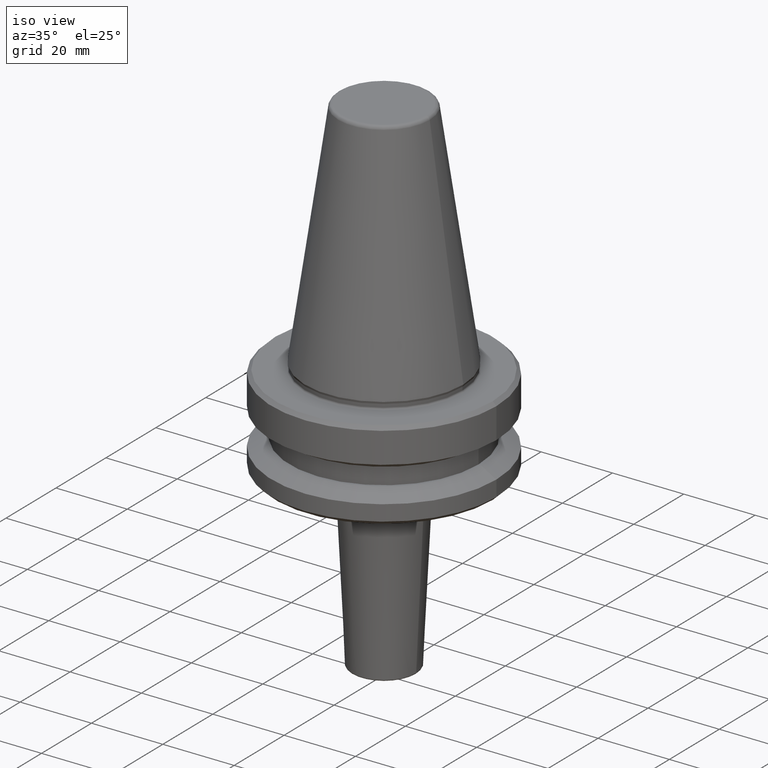
[diagram: clean part render]
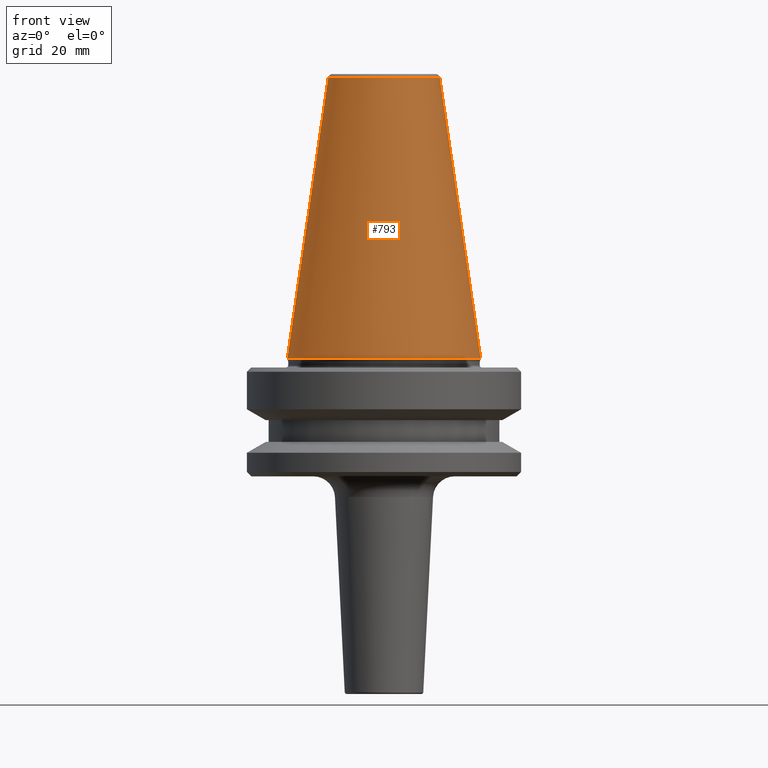
[diagram: tour spotlight — one face highlighted and labeled with its STEP entity id]
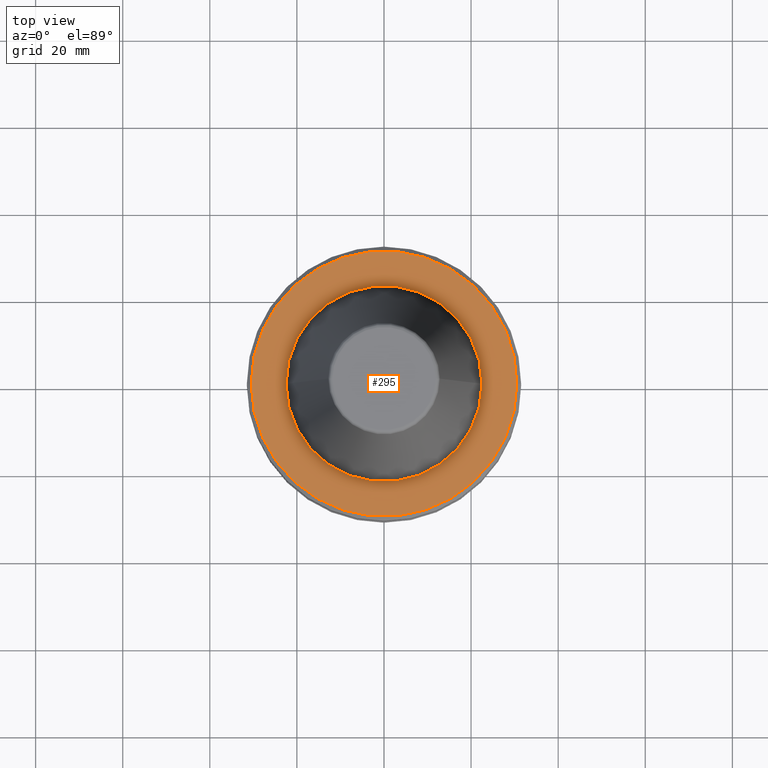
[diagram: tour spotlight — one face highlighted and labeled with its STEP entity id]
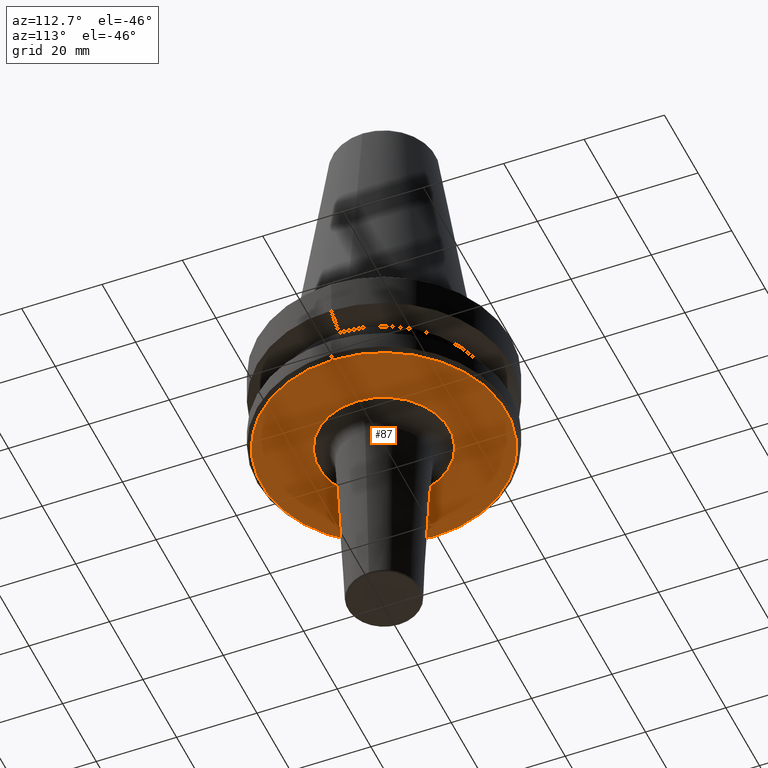
[diagram: tour spotlight — one face highlighted and labeled with its STEP entity id]
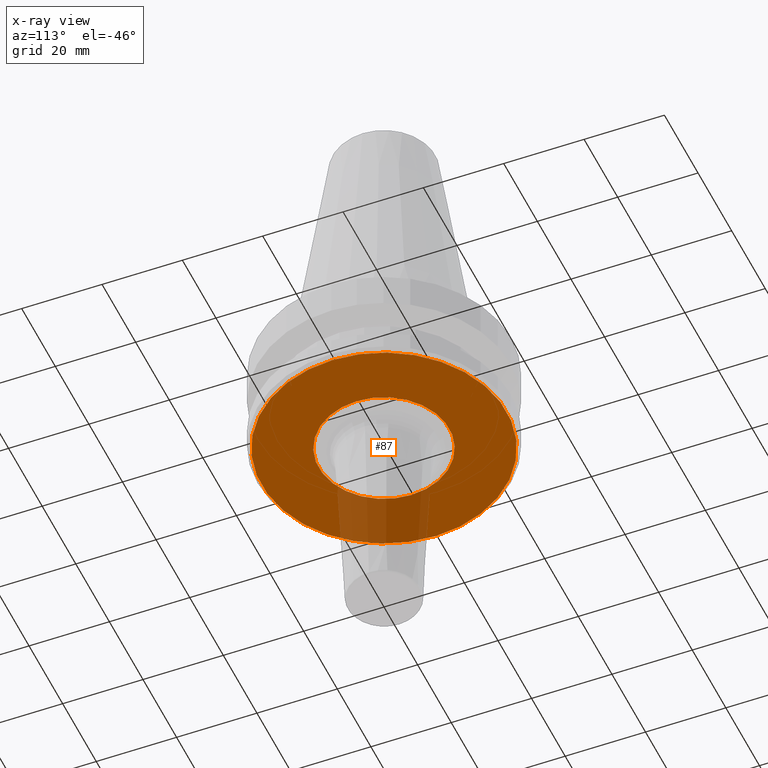
[diagram: x-ray of the same camera — body ghosted, this tour face saturated]
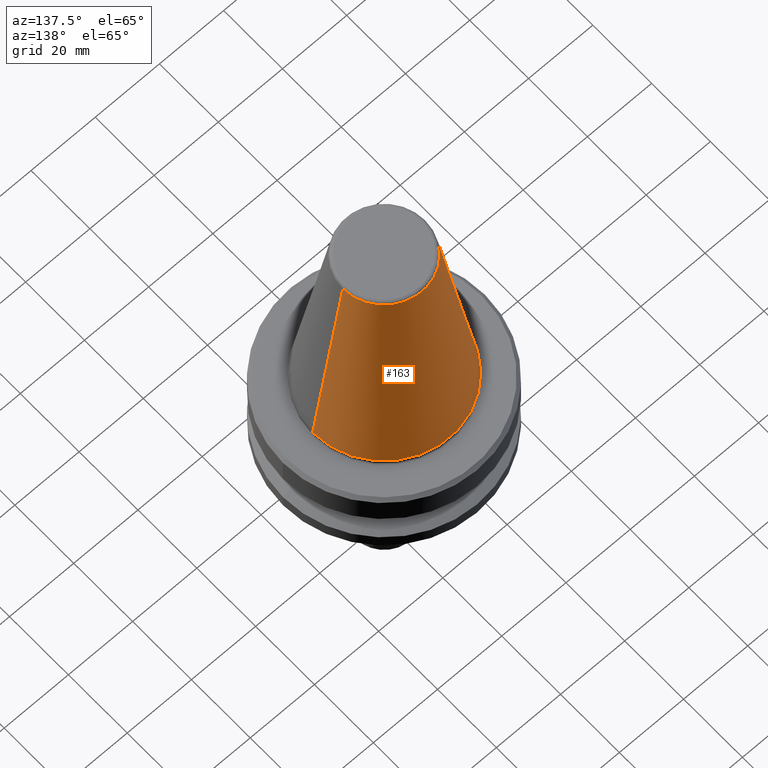
[diagram: tour spotlight — one face highlighted and labeled with its STEP entity id]
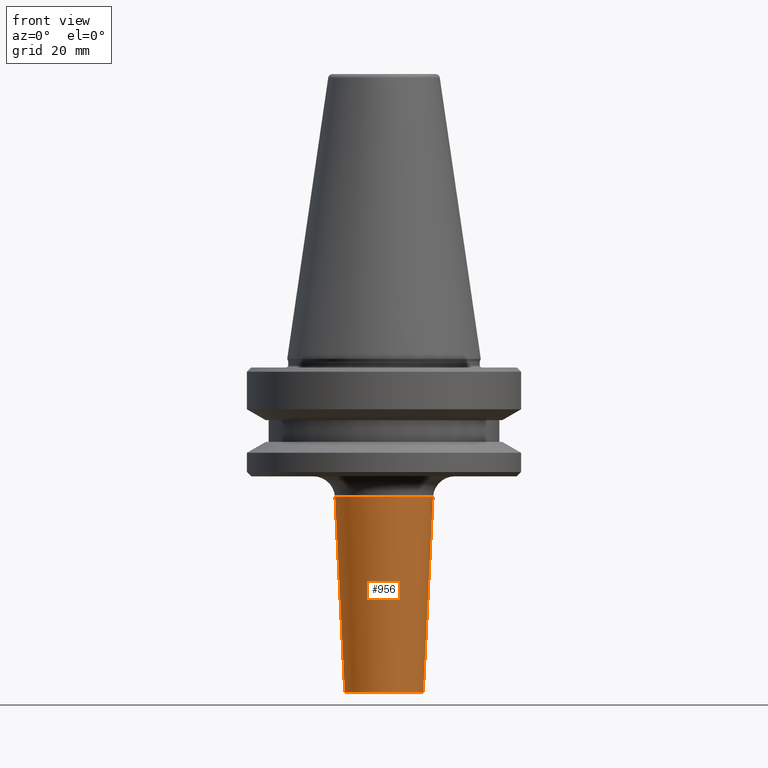
[diagram: tour spotlight — one face highlighted and labeled with its STEP entity id]
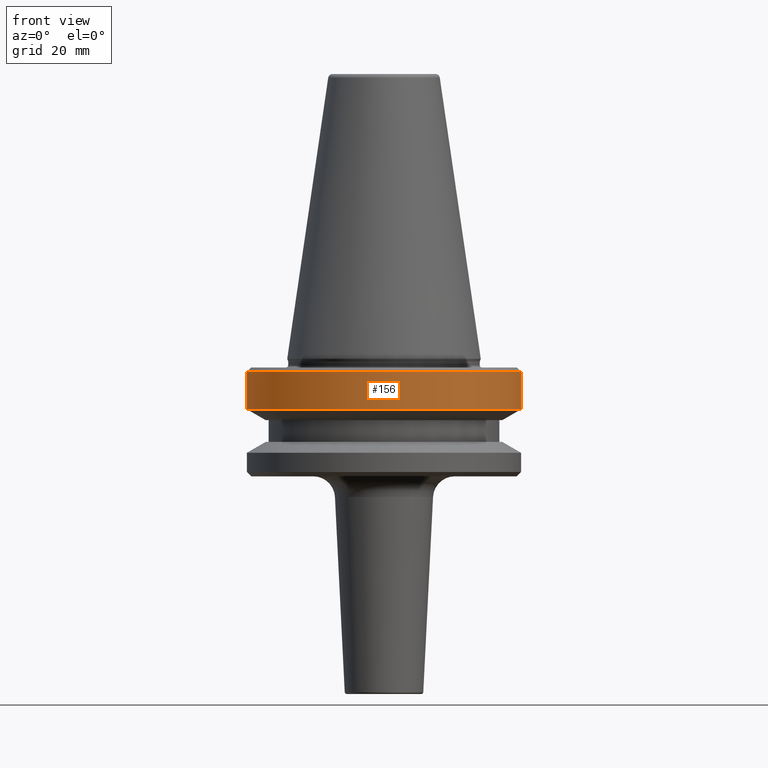
[diagram: tour spotlight — one face highlighted and labeled with its STEP entity id]
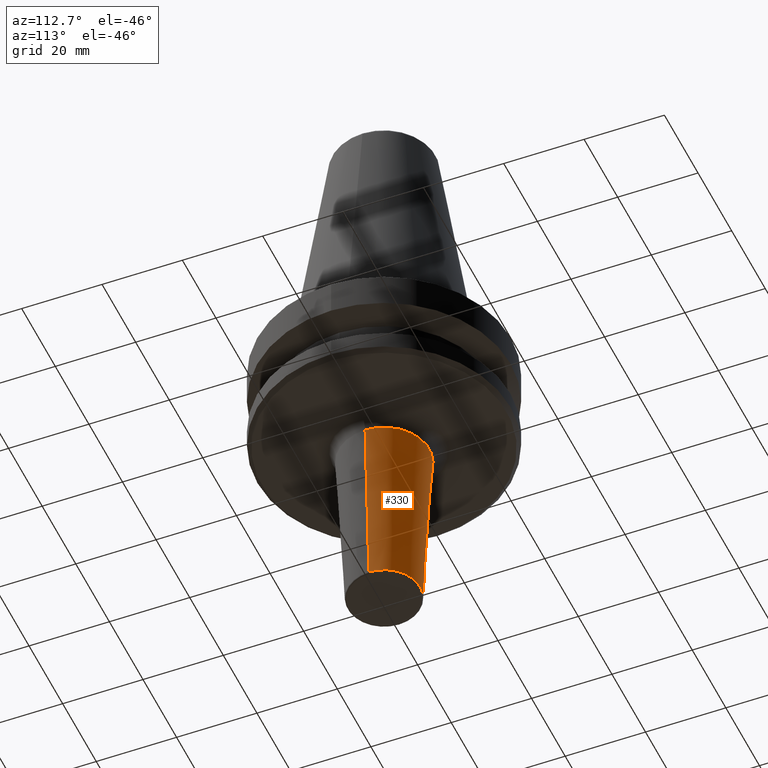
[diagram: tour spotlight — one face highlighted and labeled with its STEP entity id]
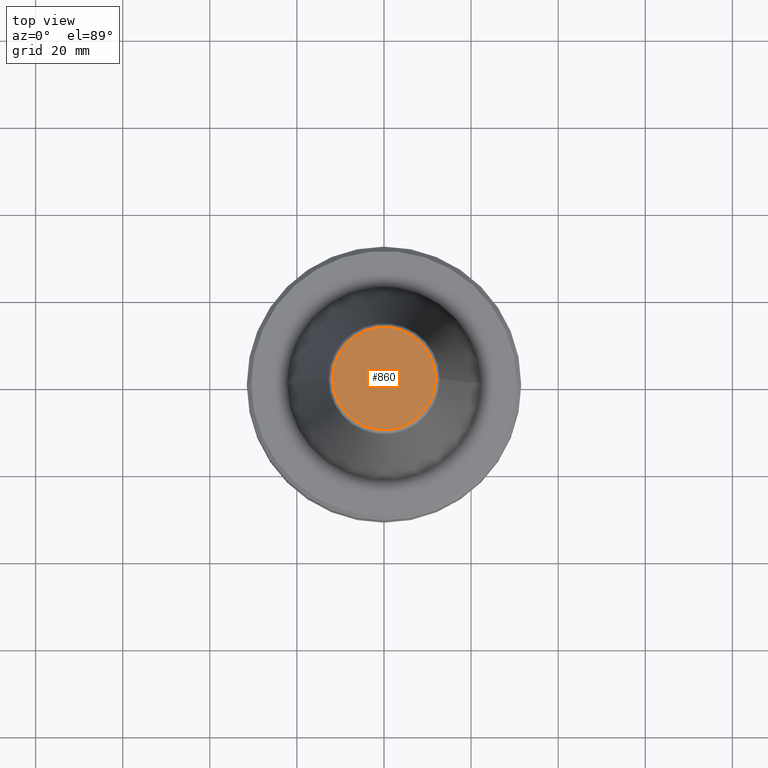
[diagram: tour spotlight — one face highlighted and labeled with its STEP entity id]
A machine part: a face-by-face anatomy tour. The part has 38 B-rep faces; the first image is the clean iso view, then the 8 largest visible faces are spotlighted one at a time (largest first), each with its STEP entity span.

Face 1 — front view, entity #793. In plain terms, the highlighted conical surface has half-angle 8.297 deg.
Definition (entity closure, byte-faithful):
#21 = CARTESIAN_POINT ( 'NONE',  ( -22.22499999999993700, 2.721777511104985000E-015, -65.40000000000057400 ) ) ;
#32 = CARTESIAN_POINT ( 'NONE',  ( 0.0000000000000000000, 0.0000000000000000000, -0.8556918111122247000 ) ) ;
#39 = CONICAL_SURFACE ( 'NONE', #927, 12.81220206925736900, 0.1448138077623198300 ) ;
#59 = CARTESIAN_POINT ( 'NONE',  ( 12.81220206925736900, 1.569042225414513200E-015, -0.8556918111122247000 ) ) ;
#63 = DIRECTION ( 'NONE',  ( 0.1443081888881795900, 1.767265616126607700E-017, -0.9895327920891826600 ) ) ;
#111 = VECTOR ( 'NONE', #63, 1000.000000000000000 ) ;
#147 = CARTESIAN_POINT ( 'NONE',  ( -12.81220206925736900, 0.0000000000000000000, -0.8556918111122247000 ) ) ;
#155 = AXIS2_PLACEMENT_3D ( 'NONE', #427, #942, #932 ) ;
#165 = ORIENTED_EDGE ( 'NONE', *, *, #823, .T. ) ;
#222 = VERTEX_POINT ( 'NONE', #905 ) ;
#290 = ORIENTED_EDGE ( 'NONE', *, *, #410, .F. ) ;
#291 = VERTEX_POINT ( 'NONE', #21 ) ;
#298 = AXIS2_PLACEMENT_3D ( 'NONE', #32, #926, #756 ) ;
#317 = ORIENTED_EDGE ( 'NONE', *, *, #1020, .F. ) ;
#336 = CIRCLE ( 'NONE', #298, 12.81220206925736900 ) ;
#386 = EDGE_CURVE ( 'NONE', #708, #291, #761, .T. ) ;
#410 = EDGE_CURVE ( 'NONE', #999, #222, #535, .T. ) ;
#427 = CARTESIAN_POINT ( 'NONE',  ( 0.0000000000000000000, 0.0000000000000000000, -65.40000000000057400 ) ) ;
#497 = CARTESIAN_POINT ( 'NONE',  ( 0.0000000000000000000, 0.0000000000000000000, -0.8556918111122247000 ) ) ;
#535 = LINE ( 'NONE', #59, #111 ) ;
#574 = CARTESIAN_POINT ( 'NONE',  ( 12.81220206925736900, 2.145409868259749100E-015, -0.8556918111122247000 ) ) ;
#627 = FACE_OUTER_BOUND ( 'NONE', #641, .T. ) ;
#641 = EDGE_LOOP ( 'NONE', ( #290, #317, #1016, #165 ) ) ;
#658 = CIRCLE ( 'NONE', #155, 22.22499999999993700 ) ;
#668 = DIRECTION ( 'NONE',  ( -1.000000000000000000, 0.0000000000000000000, 0.0000000000000000000 ) ) ;
#707 = CARTESIAN_POINT ( 'NONE',  ( -12.81220206925736900, 0.0000000000000000000, -0.8556918111122247000 ) ) ;
#708 = VERTEX_POINT ( 'NONE', #147 ) ;
#736 = VECTOR ( 'NONE', #818, 1000.000000000000000 ) ;
#756 = DIRECTION ( 'NONE',  ( 1.000000000000000000, 0.0000000000000000000, 0.0000000000000000000 ) ) ;
#761 = LINE ( 'NONE', #707, #736 ) ;
#793 = ADVANCED_FACE ( 'NONE', ( #627 ), #39, .T. ) ;
#818 = DIRECTION ( 'NONE',  ( -0.1443081888881795900, 0.0000000000000000000, -0.9895327920891826600 ) ) ;
#823 = EDGE_CURVE ( 'NONE', #291, #222, #658, .T. ) ;
#905 = CARTESIAN_POINT ( 'NONE',  ( 22.22499999999993700, 0.0000000000000000000, -65.40000000000057400 ) ) ;
#926 = DIRECTION ( 'NONE',  ( -0.0000000000000000000, -0.0000000000000000000, 1.000000000000000000 ) ) ;
#927 = AXIS2_PLACEMENT_3D ( 'NONE', #497, #1026, #668 ) ;
#932 = DIRECTION ( 'NONE',  ( 1.000000000000000000, 0.0000000000000000000, 0.0000000000000000000 ) ) ;
#942 = DIRECTION ( 'NONE',  ( -0.0000000000000000000, -0.0000000000000000000, 1.000000000000000000 ) ) ;
#999 = VERTEX_POINT ( 'NONE', #574 ) ;
#1016 = ORIENTED_EDGE ( 'NONE', *, *, #386, .T. ) ;
#1020 = EDGE_CURVE ( 'NONE', #708, #999, #336, .T. ) ;
#1026 = DIRECTION ( 'NONE',  ( 0.0000000000000000000, 0.0000000000000000000, -1.000000000000000000 ) ) ;

Face 2 — top view, entity #295. In plain terms, the highlighted planar face has unit normal (0, 0, -1).
Definition (entity closure, byte-faithful):
#3 = CARTESIAN_POINT ( 'NONE',  ( 0.0000000000000000000, 0.0000000000000000000, -67.40000000000034700 ) ) ;
#46 = CARTESIAN_POINT ( 'NONE',  ( -22.49999999999996400, 2.755455298081540400E-015, -67.40000000000034700 ) ) ;
#70 = EDGE_CURVE ( 'NONE', #308, #687, #914, .T. ) ;
#102 = DIRECTION ( 'NONE',  ( -0.0000000000000000000, -0.0000000000000000000, 1.000000000000000000 ) ) ;
#151 = CIRCLE ( 'NONE', #566, 22.49999999999996400 ) ;
#157 = CARTESIAN_POINT ( 'NONE',  ( 30.49999999999997200, 3.796405077356798300E-015, -67.40000000000034700 ) ) ;
#228 = CIRCLE ( 'NONE', #710, 30.49999999999997200 ) ;
#259 = EDGE_CURVE ( 'NONE', #624, #344, #630, .T. ) ;
#270 = EDGE_CURVE ( 'NONE', #687, #308, #151, .T. ) ;
#271 = PLANE ( 'NONE',  #321 ) ;
#295 = ADVANCED_FACE ( 'NONE', ( #941, #343 ), #271, .F. ) ;
#308 = VERTEX_POINT ( 'NONE', #631 ) ;
#314 = CARTESIAN_POINT ( 'NONE',  ( 0.0000000000000000000, 0.0000000000000000000, -67.40000000000034700 ) ) ;
#321 = AXIS2_PLACEMENT_3D ( 'NONE', #748, #882, #1025 ) ;
#343 = FACE_OUTER_BOUND ( 'NONE', #770, .T. ) ;
#344 = VERTEX_POINT ( 'NONE', #157 ) ;
#356 = CARTESIAN_POINT ( 'NONE',  ( 0.0000000000000000000, 0.0000000000000000000, -67.40000000000034700 ) ) ;
#358 = CARTESIAN_POINT ( 'NONE',  ( -30.49999999999997200, 0.0000000000000000000, -67.40000000000034700 ) ) ;
#383 = ORIENTED_EDGE ( 'NONE', *, *, #735, .T. ) ;
#384 = ORIENTED_EDGE ( 'NONE', *, *, #259, .T. ) ;
#418 = AXIS2_PLACEMENT_3D ( 'NONE', #314, #102, #920 ) ;
#474 = DIRECTION ( 'NONE',  ( 1.000000000000000000, 0.0000000000000000000, 0.0000000000000000000 ) ) ;
#566 = AXIS2_PLACEMENT_3D ( 'NONE', #3, #583, #581 ) ;
#581 = DIRECTION ( 'NONE',  ( 1.000000000000000000, 0.0000000000000000000, 0.0000000000000000000 ) ) ;
#583 = DIRECTION ( 'NONE',  ( -0.0000000000000000000, -0.0000000000000000000, 1.000000000000000000 ) ) ;
#624 = VERTEX_POINT ( 'NONE', #358 ) ;
#630 = CIRCLE ( 'NONE', #418, 30.49999999999997200 ) ;
#631 = CARTESIAN_POINT ( 'NONE',  ( 22.49999999999996400, 0.0000000000000000000, -67.40000000000034700 ) ) ;
#642 = DIRECTION ( 'NONE',  ( 1.000000000000000000, 0.0000000000000000000, 0.0000000000000000000 ) ) ;
#687 = VERTEX_POINT ( 'NONE', #46 ) ;
#710 = AXIS2_PLACEMENT_3D ( 'NONE', #356, #910, #474 ) ;
#715 = ORIENTED_EDGE ( 'NONE', *, *, #270, .F. ) ;
#735 = EDGE_CURVE ( 'NONE', #344, #624, #228, .T. ) ;
#748 = CARTESIAN_POINT ( 'NONE',  ( 0.0000000000000000000, 0.0000000000000000000, -67.40000000000034700 ) ) ;
#770 = EDGE_LOOP ( 'NONE', ( #384, #383 ) ) ;
#771 = AXIS2_PLACEMENT_3D ( 'NONE', #970, #993, #642 ) ;
#865 = ORIENTED_EDGE ( 'NONE', *, *, #70, .F. ) ;
#882 = DIRECTION ( 'NONE',  ( 0.0000000000000000000, 0.0000000000000000000, -1.000000000000000000 ) ) ;
#904 = EDGE_LOOP ( 'NONE', ( #865, #715 ) ) ;
#910 = DIRECTION ( 'NONE',  ( -0.0000000000000000000, -0.0000000000000000000, 1.000000000000000000 ) ) ;
#914 = CIRCLE ( 'NONE', #771, 22.49999999999996400 ) ;
#920 = DIRECTION ( 'NONE',  ( 1.000000000000000000, 0.0000000000000000000, 0.0000000000000000000 ) ) ;
#941 = FACE_BOUND ( 'NONE', #904, .T. ) ;
#970 = CARTESIAN_POINT ( 'NONE',  ( 0.0000000000000000000, 0.0000000000000000000, -67.40000000000034700 ) ) ;
#993 = DIRECTION ( 'NONE',  ( -0.0000000000000000000, -0.0000000000000000000, 1.000000000000000000 ) ) ;
#1025 = DIRECTION ( 'NONE',  ( -1.000000000000000000, 0.0000000000000000000, -0.0000000000000000000 ) ) ;

Face 3 — auxiliary view, entity #87. An x-ray twin of the same camera follows (body ghosted, this face saturated) — the face is partly hidden behind the body. In plain terms, the highlighted planar face has unit normal (0, -0, 1).
Definition (entity closure, byte-faithful):
#14 = CARTESIAN_POINT ( 'NONE',  ( 0.0000000000000000000, 0.0000000000000000000, -92.40000000000806300 ) ) ;
#22 = CARTESIAN_POINT ( 'NONE',  ( 0.0000000000000000000, 0.0000000000000000000, -92.40000000000806300 ) ) ;
#29 = DIRECTION ( 'NONE',  ( 0.0000000000000000000, -0.0000000000000000000, 1.000000000000000000 ) ) ;
#31 = DIRECTION ( 'NONE',  ( -0.0000000000000000000, -0.0000000000000000000, 1.000000000000000000 ) ) ;
#49 = EDGE_CURVE ( 'NONE', #471, #659, #140, .T. ) ;
#75 = AXIS2_PLACEMENT_3D ( 'NONE', #14, #208, #462 ) ;
#82 = ORIENTED_EDGE ( 'NONE', *, *, #116, .T. ) ;
#87 = ADVANCED_FACE ( 'NONE', ( #482, #511 ), #239, .F. ) ;
#98 = DIRECTION ( 'NONE',  ( 1.000000000000000000, 0.0000000000000000000, 0.0000000000000000000 ) ) ;
#116 = EDGE_CURVE ( 'NONE', #659, #471, #483, .T. ) ;
#140 = CIRCLE ( 'NONE', #177, 16.25624609862519400 ) ;
#177 = AXIS2_PLACEMENT_3D ( 'NONE', #22, #794, #644 ) ;
#202 = DIRECTION ( 'NONE',  ( 1.000000000000000000, 0.0000000000000000000, 0.0000000000000000000 ) ) ;
#208 = DIRECTION ( 'NONE',  ( -0.0000000000000000000, -0.0000000000000000000, 1.000000000000000000 ) ) ;
#239 = PLANE ( 'NONE',  #998 ) ;
#265 = CARTESIAN_POINT ( 'NONE',  ( 0.0000000000000000000, 1.800519164149672700E-013, -92.40000000000804900 ) ) ;
#277 = CARTESIAN_POINT ( 'NONE',  ( 30.49999999999241900, 0.0000000000000000000, -92.40000000000803500 ) ) ;
#324 = CIRCLE ( 'NONE', #701, 30.49999999999241900 ) ;
#391 = EDGE_LOOP ( 'NONE', ( #894, #996 ) ) ;
#436 = EDGE_CURVE ( 'NONE', #797, #625, #324, .T. ) ;
#462 = DIRECTION ( 'NONE',  ( 1.000000000000000000, 0.0000000000000000000, 0.0000000000000000000 ) ) ;
#471 = VERTEX_POINT ( 'NONE', #709 ) ;
#482 = FACE_OUTER_BOUND ( 'NONE', #391, .T. ) ;
#483 = CIRCLE ( 'NONE', #75, 16.25624609862519400 ) ;
#484 = EDGE_CURVE ( 'NONE', #625, #797, #880, .T. ) ;
#511 = FACE_BOUND ( 'NONE', #944, .T. ) ;
#616 = AXIS2_PLACEMENT_3D ( 'NONE', #662, #31, #98 ) ;
#625 = VERTEX_POINT ( 'NONE', #746 ) ;
#644 = DIRECTION ( 'NONE',  ( 1.000000000000000000, 0.0000000000000000000, 0.0000000000000000000 ) ) ;
#659 = VERTEX_POINT ( 'NONE', #728 ) ;
#662 = CARTESIAN_POINT ( 'NONE',  ( 0.0000000000000000000, 0.0000000000000000000, -92.40000000000803500 ) ) ;
#701 = AXIS2_PLACEMENT_3D ( 'NONE', #754, #745, #202 ) ;
#709 = CARTESIAN_POINT ( 'NONE',  ( -16.25624609862519400, 1.990815975083299200E-015, -92.40000000000806300 ) ) ;
#728 = CARTESIAN_POINT ( 'NONE',  ( 16.25624609862519400, 0.0000000000000000000, -92.40000000000806300 ) ) ;
#745 = DIRECTION ( 'NONE',  ( -0.0000000000000000000, -0.0000000000000000000, 1.000000000000000000 ) ) ;
#746 = CARTESIAN_POINT ( 'NONE',  ( -30.49999999999241900, 3.796405077356336000E-015, -92.40000000000803500 ) ) ;
#754 = CARTESIAN_POINT ( 'NONE',  ( 0.0000000000000000000, 0.0000000000000000000, -92.40000000000803500 ) ) ;
#794 = DIRECTION ( 'NONE',  ( -0.0000000000000000000, -0.0000000000000000000, 1.000000000000000000 ) ) ;
#797 = VERTEX_POINT ( 'NONE', #277 ) ;
#875 = DIRECTION ( 'NONE',  ( 1.000000000000000000, 0.0000000000000000000, 0.0000000000000000000 ) ) ;
#880 = CIRCLE ( 'NONE', #616, 30.49999999999241900 ) ;
#894 = ORIENTED_EDGE ( 'NONE', *, *, #436, .F. ) ;
#944 = EDGE_LOOP ( 'NONE', ( #82, #951 ) ) ;
#951 = ORIENTED_EDGE ( 'NONE', *, *, #49, .T. ) ;
#996 = ORIENTED_EDGE ( 'NONE', *, *, #484, .F. ) ;
#998 = AXIS2_PLACEMENT_3D ( 'NONE', #265, #29, #875 ) ;

Face 4 — auxiliary view, entity #163. In plain terms, the highlighted conical surface has half-angle 8.297 deg.
Definition (entity closure, byte-faithful):
#15 = AXIS2_PLACEMENT_3D ( 'NONE', #615, #980, #86 ) ;
#21 = CARTESIAN_POINT ( 'NONE',  ( -22.22499999999993700, 2.721777511104985000E-015, -65.40000000000057400 ) ) ;
#25 = FACE_OUTER_BOUND ( 'NONE', #479, .T. ) ;
#59 = CARTESIAN_POINT ( 'NONE',  ( 12.81220206925736900, 1.569042225414513200E-015, -0.8556918111122247000 ) ) ;
#63 = DIRECTION ( 'NONE',  ( 0.1443081888881795900, 1.767265616126607700E-017, -0.9895327920891826600 ) ) ;
#86 = DIRECTION ( 'NONE',  ( 1.000000000000000000, 0.0000000000000000000, 0.0000000000000000000 ) ) ;
#111 = VECTOR ( 'NONE', #63, 1000.000000000000000 ) ;
#147 = CARTESIAN_POINT ( 'NONE',  ( -12.81220206925736900, 0.0000000000000000000, -0.8556918111122247000 ) ) ;
#149 = CIRCLE ( 'NONE', #200, 12.81220206925736900 ) ;
#163 = ADVANCED_FACE ( 'NONE', ( #25 ), #393, .T. ) ;
#200 = AXIS2_PLACEMENT_3D ( 'NONE', #466, #1029, #319 ) ;
#222 = VERTEX_POINT ( 'NONE', #905 ) ;
#291 = VERTEX_POINT ( 'NONE', #21 ) ;
#301 = CIRCLE ( 'NONE', #15, 22.22499999999993700 ) ;
#319 = DIRECTION ( 'NONE',  ( 1.000000000000000000, 0.0000000000000000000, 0.0000000000000000000 ) ) ;
#337 = ORIENTED_EDGE ( 'NONE', *, *, #959, .T. ) ;
#386 = EDGE_CURVE ( 'NONE', #708, #291, #761, .T. ) ;
#393 = CONICAL_SURFACE ( 'NONE', #406, 12.81220206925736900, 0.1448138077623198300 ) ;
#406 = AXIS2_PLACEMENT_3D ( 'NONE', #703, #675, #633 ) ;
#410 = EDGE_CURVE ( 'NONE', #999, #222, #535, .T. ) ;
#466 = CARTESIAN_POINT ( 'NONE',  ( 0.0000000000000000000, 0.0000000000000000000, -0.8556918111122247000 ) ) ;
#479 = EDGE_LOOP ( 'NONE', ( #874, #1019, #337, #821 ) ) ;
#535 = LINE ( 'NONE', #59, #111 ) ;
#574 = CARTESIAN_POINT ( 'NONE',  ( 12.81220206925736900, 2.145409868259749100E-015, -0.8556918111122247000 ) ) ;
#615 = CARTESIAN_POINT ( 'NONE',  ( 0.0000000000000000000, 0.0000000000000000000, -65.40000000000057400 ) ) ;
#633 = DIRECTION ( 'NONE',  ( -1.000000000000000000, 0.0000000000000000000, 0.0000000000000000000 ) ) ;
#675 = DIRECTION ( 'NONE',  ( 0.0000000000000000000, 0.0000000000000000000, -1.000000000000000000 ) ) ;
#703 = CARTESIAN_POINT ( 'NONE',  ( 0.0000000000000000000, 0.0000000000000000000, -0.8556918111122247000 ) ) ;
#707 = CARTESIAN_POINT ( 'NONE',  ( -12.81220206925736900, 0.0000000000000000000, -0.8556918111122247000 ) ) ;
#708 = VERTEX_POINT ( 'NONE', #147 ) ;
#736 = VECTOR ( 'NONE', #818, 1000.000000000000000 ) ;
#761 = LINE ( 'NONE', #707, #736 ) ;
#818 = DIRECTION ( 'NONE',  ( -0.1443081888881795900, 0.0000000000000000000, -0.9895327920891826600 ) ) ;
#821 = ORIENTED_EDGE ( 'NONE', *, *, #386, .F. ) ;
#874 = ORIENTED_EDGE ( 'NONE', *, *, #995, .F. ) ;
#905 = CARTESIAN_POINT ( 'NONE',  ( 22.22499999999993700, 0.0000000000000000000, -65.40000000000057400 ) ) ;
#959 = EDGE_CURVE ( 'NONE', #222, #291, #301, .T. ) ;
#980 = DIRECTION ( 'NONE',  ( -0.0000000000000000000, -0.0000000000000000000, 1.000000000000000000 ) ) ;
#995 = EDGE_CURVE ( 'NONE', #999, #708, #149, .T. ) ;
#999 = VERTEX_POINT ( 'NONE', #574 ) ;
#1019 = ORIENTED_EDGE ( 'NONE', *, *, #410, .T. ) ;
#1029 = DIRECTION ( 'NONE',  ( -0.0000000000000000000, -0.0000000000000000000, 1.000000000000000000 ) ) ;

Face 5 — front view, entity #956. In plain terms, the highlighted conical surface has half-angle 2.862 deg.
Definition (entity closure, byte-faithful):
#53 = ORIENTED_EDGE ( 'NONE', *, *, #840, .F. ) ;
#65 = ORIENTED_EDGE ( 'NONE', *, *, #878, .T. ) ;
#89 = CARTESIAN_POINT ( 'NONE',  ( 9.023751559576391300, 0.0000000000000000000, -141.9249688084802900 ) ) ;
#129 = CONICAL_SURFACE ( 'NONE', #1014, 11.26248440423597500, 0.04995839572194268200 ) ;
#207 = CARTESIAN_POINT ( 'NONE',  ( 0.0000000000000000000, 0.0000000000000000000, -97.15031191528858300 ) ) ;
#253 = CIRCLE ( 'NONE', #614, 11.26248440423597500 ) ;
#266 = EDGE_CURVE ( 'NONE', #899, #340, #368, .T. ) ;
#267 = CARTESIAN_POINT ( 'NONE',  ( 11.26248440423597500, 0.0000000000000000000, -97.15031191528858300 ) ) ;
#305 = DIRECTION ( 'NONE',  ( 1.000000000000000000, 0.0000000000000000000, 0.0000000000000000000 ) ) ;
#328 = FACE_OUTER_BOUND ( 'NONE', #807, .T. ) ;
#333 = DIRECTION ( 'NONE',  ( 1.000000000000000000, 0.0000000000000000000, 0.0000000000000000000 ) ) ;
#340 = VERTEX_POINT ( 'NONE', #559 ) ;
#349 = DIRECTION ( 'NONE',  ( -0.04993761694389215600, 6.115594274738417000E-018, 0.9987523388778446500 ) ) ;
#368 = LINE ( 'NONE', #267, #976 ) ;
#378 = CIRCLE ( 'NONE', #639, 9.023751559576391300 ) ;
#405 = DIRECTION ( 'NONE',  ( -0.0000000000000000000, -0.0000000000000000000, 1.000000000000000000 ) ) ;
#408 = CARTESIAN_POINT ( 'NONE',  ( -9.023751559576391300, 1.105090846373616300E-015, -141.9249688084802900 ) ) ;
#473 = DIRECTION ( 'NONE',  ( -0.0000000000000000000, -0.0000000000000000000, 1.000000000000000000 ) ) ;
#494 = DIRECTION ( 'NONE',  ( -0.0000000000000000000, -0.0000000000000000000, 1.000000000000000000 ) ) ;
#528 = VERTEX_POINT ( 'NONE', #928 ) ;
#559 = CARTESIAN_POINT ( 'NONE',  ( 11.26248440423597500, 0.0000000000000000000, -97.15031191528858300 ) ) ;
#575 = VERTEX_POINT ( 'NONE', #408 ) ;
#598 = CARTESIAN_POINT ( 'NONE',  ( -11.26248440423597500, 1.379256547609457100E-015, -97.15031191528858300 ) ) ;
#599 = ORIENTED_EDGE ( 'NONE', *, *, #726, .F. ) ;
#602 = CARTESIAN_POINT ( 'NONE',  ( 0.0000000000000000000, 0.0000000000000000000, -141.9249688084802900 ) ) ;
#614 = AXIS2_PLACEMENT_3D ( 'NONE', #837, #405, #305 ) ;
#639 = AXIS2_PLACEMENT_3D ( 'NONE', #602, #494, #994 ) ;
#726 = EDGE_CURVE ( 'NONE', #528, #340, #253, .T. ) ;
#747 = DIRECTION ( 'NONE',  ( 0.04993761694389215600, 0.0000000000000000000, 0.9987523388778446500 ) ) ;
#807 = EDGE_LOOP ( 'NONE', ( #53, #65, #841, #599 ) ) ;
#816 = VECTOR ( 'NONE', #349, 1000.000000000000200 ) ;
#837 = CARTESIAN_POINT ( 'NONE',  ( 0.0000000000000000000, 0.0000000000000000000, -97.15031191528858300 ) ) ;
#840 = EDGE_CURVE ( 'NONE', #575, #528, #868, .T. ) ;
#841 = ORIENTED_EDGE ( 'NONE', *, *, #266, .T. ) ;
#868 = LINE ( 'NONE', #598, #816 ) ;
#878 = EDGE_CURVE ( 'NONE', #575, #899, #378, .T. ) ;
#899 = VERTEX_POINT ( 'NONE', #89 ) ;
#928 = CARTESIAN_POINT ( 'NONE',  ( -11.26248440423597500, 1.685036261346378000E-015, -97.15031191528858300 ) ) ;
#956 = ADVANCED_FACE ( 'NONE', ( #328 ), #129, .T. ) ;
#976 = VECTOR ( 'NONE', #747, 1000.000000000000200 ) ;
#994 = DIRECTION ( 'NONE',  ( 1.000000000000000000, 0.0000000000000000000, 0.0000000000000000000 ) ) ;
#1014 = AXIS2_PLACEMENT_3D ( 'NONE', #207, #473, #333 ) ;

Face 6 — front view, entity #156. In plain terms, the highlighted cylindrical surface (partial cylindrical patch) has radius 31.5 mm, axis along (-0, -0, 1).
Definition (entity closure, byte-faithful):
#13 = AXIS2_PLACEMENT_3D ( 'NONE', #949, #870, #107 ) ;
#18 = DIRECTION ( 'NONE',  ( 1.000000000000000000, 0.0000000000000000000, 0.0000000000000000000 ) ) ;
#57 = VECTOR ( 'NONE', #108, 1000.000000000000000 ) ;
#95 = EDGE_CURVE ( 'NONE', #512, #312, #275, .T. ) ;
#107 = DIRECTION ( 'NONE',  ( 1.000000000000000000, 0.0000000000000000000, 0.0000000000000000000 ) ) ;
#108 = DIRECTION ( 'NONE',  ( -0.0000000000000000000, -0.0000000000000000000, 1.000000000000000000 ) ) ;
#133 = CARTESIAN_POINT ( 'NONE',  ( 31.50000000000008500, 0.0000000000000000000, -68.40000000000046000 ) ) ;
#156 = ADVANCED_FACE ( 'NONE', ( #649 ), #209, .T. ) ;
#174 = EDGE_CURVE ( 'NONE', #512, #954, #609, .T. ) ;
#180 = AXIS2_PLACEMENT_3D ( 'NONE', #611, #285, #431 ) ;
#209 = CYLINDRICAL_SURFACE ( 'NONE', #13, 31.50000000000008500 ) ;
#275 = LINE ( 'NONE', #318, #57 ) ;
#279 = CARTESIAN_POINT ( 'NONE',  ( 0.0000000000000000000, 0.0000000000000000000, -68.40000000000046000 ) ) ;
#285 = DIRECTION ( 'NONE',  ( -0.0000000000000000000, -0.0000000000000000000, 1.000000000000000000 ) ) ;
#312 = VERTEX_POINT ( 'NONE', #706 ) ;
#318 = CARTESIAN_POINT ( 'NONE',  ( -31.50000000000008500, 3.857637417314172900E-015, 6.357346922996331500 ) ) ;
#431 = DIRECTION ( 'NONE',  ( 1.000000000000000000, 0.0000000000000000000, 0.0000000000000000000 ) ) ;
#455 = VECTOR ( 'NONE', #786, 1000.000000000000000 ) ;
#477 = EDGE_CURVE ( 'NONE', #954, #804, #693, .T. ) ;
#489 = CARTESIAN_POINT ( 'NONE',  ( -31.50000000000008500, 3.857637417314172900E-015, -76.99985799368391800 ) ) ;
#496 = CARTESIAN_POINT ( 'NONE',  ( 31.50000000000008500, 0.0000000000000000000, -76.99985799368391800 ) ) ;
#512 = VERTEX_POINT ( 'NONE', #489 ) ;
#523 = ORIENTED_EDGE ( 'NONE', *, *, #477, .T. ) ;
#541 = CARTESIAN_POINT ( 'NONE',  ( 31.50000000000008500, 0.0000000000000000000, 6.357346922996331500 ) ) ;
#585 = EDGE_CURVE ( 'NONE', #312, #804, #1046, .T. ) ;
#609 = CIRCLE ( 'NONE', #180, 31.50000000000008500 ) ;
#611 = CARTESIAN_POINT ( 'NONE',  ( 0.0000000000000000000, 0.0000000000000000000, -76.99985799368391800 ) ) ;
#623 = ORIENTED_EDGE ( 'NONE', *, *, #95, .F. ) ;
#649 = FACE_OUTER_BOUND ( 'NONE', #847, .T. ) ;
#693 = LINE ( 'NONE', #541, #455 ) ;
#706 = CARTESIAN_POINT ( 'NONE',  ( -31.50000000000008500, 3.857637417314172900E-015, -68.40000000000046000 ) ) ;
#786 = DIRECTION ( 'NONE',  ( -0.0000000000000000000, -0.0000000000000000000, 1.000000000000000000 ) ) ;
#804 = VERTEX_POINT ( 'NONE', #133 ) ;
#847 = EDGE_LOOP ( 'NONE', ( #623, #858, #523, #889 ) ) ;
#858 = ORIENTED_EDGE ( 'NONE', *, *, #174, .T. ) ;
#870 = DIRECTION ( 'NONE',  ( -0.0000000000000000000, -0.0000000000000000000, 1.000000000000000000 ) ) ;
#889 = ORIENTED_EDGE ( 'NONE', *, *, #585, .F. ) ;
#947 = AXIS2_PLACEMENT_3D ( 'NONE', #279, #948, #18 ) ;
#948 = DIRECTION ( 'NONE',  ( -0.0000000000000000000, -0.0000000000000000000, 1.000000000000000000 ) ) ;
#949 = CARTESIAN_POINT ( 'NONE',  ( 0.0000000000000000000, 0.0000000000000000000, 6.357346922996331500 ) ) ;
#954 = VERTEX_POINT ( 'NONE', #496 ) ;
#1046 = CIRCLE ( 'NONE', #947, 31.50000000000008500 ) ;

Face 7 — auxiliary view, entity #330. In plain terms, the highlighted conical surface has half-angle 2.862 deg.
Definition (entity closure, byte-faithful):
#89 = CARTESIAN_POINT ( 'NONE',  ( 9.023751559576391300, 0.0000000000000000000, -141.9249688084802900 ) ) ;
#130 = ORIENTED_EDGE ( 'NONE', *, *, #840, .T. ) ;
#218 = CIRCLE ( 'NONE', #262, 11.26248440423597500 ) ;
#262 = AXIS2_PLACEMENT_3D ( 'NONE', #990, #385, #679 ) ;
#264 = ORIENTED_EDGE ( 'NONE', *, *, #843, .F. ) ;
#266 = EDGE_CURVE ( 'NONE', #899, #340, #368, .T. ) ;
#267 = CARTESIAN_POINT ( 'NONE',  ( 11.26248440423597500, 0.0000000000000000000, -97.15031191528858300 ) ) ;
#272 = EDGE_LOOP ( 'NONE', ( #820, #130, #264, #553 ) ) ;
#330 = ADVANCED_FACE ( 'NONE', ( #785 ), #558, .T. ) ;
#340 = VERTEX_POINT ( 'NONE', #559 ) ;
#349 = DIRECTION ( 'NONE',  ( -0.04993761694389215600, 6.115594274738417000E-018, 0.9987523388778446500 ) ) ;
#359 = CARTESIAN_POINT ( 'NONE',  ( 0.0000000000000000000, 0.0000000000000000000, -141.9249688084802900 ) ) ;
#368 = LINE ( 'NONE', #267, #976 ) ;
#385 = DIRECTION ( 'NONE',  ( -0.0000000000000000000, -0.0000000000000000000, 1.000000000000000000 ) ) ;
#400 = DIRECTION ( 'NONE',  ( 1.000000000000000000, 0.0000000000000000000, 0.0000000000000000000 ) ) ;
#408 = CARTESIAN_POINT ( 'NONE',  ( -9.023751559576391300, 1.105090846373616300E-015, -141.9249688084802900 ) ) ;
#456 = CIRCLE ( 'NONE', #493, 9.023751559576391300 ) ;
#460 = DIRECTION ( 'NONE',  ( -0.0000000000000000000, -0.0000000000000000000, 1.000000000000000000 ) ) ;
#493 = AXIS2_PLACEMENT_3D ( 'NONE', #359, #861, #564 ) ;
#528 = VERTEX_POINT ( 'NONE', #928 ) ;
#553 = ORIENTED_EDGE ( 'NONE', *, *, #266, .F. ) ;
#558 = CONICAL_SURFACE ( 'NONE', #791, 11.26248440423597500, 0.04995839572194268200 ) ;
#559 = CARTESIAN_POINT ( 'NONE',  ( 11.26248440423597500, 0.0000000000000000000, -97.15031191528858300 ) ) ;
#564 = DIRECTION ( 'NONE',  ( 1.000000000000000000, 0.0000000000000000000, 0.0000000000000000000 ) ) ;
#575 = VERTEX_POINT ( 'NONE', #408 ) ;
#598 = CARTESIAN_POINT ( 'NONE',  ( -11.26248440423597500, 1.379256547609457100E-015, -97.15031191528858300 ) ) ;
#679 = DIRECTION ( 'NONE',  ( 1.000000000000000000, 0.0000000000000000000, 0.0000000000000000000 ) ) ;
#719 = EDGE_CURVE ( 'NONE', #899, #575, #456, .T. ) ;
#747 = DIRECTION ( 'NONE',  ( 0.04993761694389215600, 0.0000000000000000000, 0.9987523388778446500 ) ) ;
#785 = FACE_OUTER_BOUND ( 'NONE', #272, .T. ) ;
#791 = AXIS2_PLACEMENT_3D ( 'NONE', #849, #460, #400 ) ;
#816 = VECTOR ( 'NONE', #349, 1000.000000000000200 ) ;
#820 = ORIENTED_EDGE ( 'NONE', *, *, #719, .T. ) ;
#840 = EDGE_CURVE ( 'NONE', #575, #528, #868, .T. ) ;
#843 = EDGE_CURVE ( 'NONE', #340, #528, #218, .T. ) ;
#849 = CARTESIAN_POINT ( 'NONE',  ( 0.0000000000000000000, 0.0000000000000000000, -97.15031191528858300 ) ) ;
#861 = DIRECTION ( 'NONE',  ( -0.0000000000000000000, -0.0000000000000000000, 1.000000000000000000 ) ) ;
#868 = LINE ( 'NONE', #598, #816 ) ;
#899 = VERTEX_POINT ( 'NONE', #89 ) ;
#928 = CARTESIAN_POINT ( 'NONE',  ( -11.26248440423597500, 1.685036261346378000E-015, -97.15031191528858300 ) ) ;
#976 = VECTOR ( 'NONE', #747, 1000.000000000000200 ) ;
#990 = CARTESIAN_POINT ( 'NONE',  ( 0.0000000000000000000, 0.0000000000000000000, -97.15031191528858300 ) ) ;

Face 8 — top view, entity #860. In plain terms, the highlighted planar face has unit normal (0, 0, -1).
Definition (entity closure, byte-faithful):
#12 = EDGE_LOOP ( 'NONE', ( #60, #381 ) ) ;
#60 = ORIENTED_EDGE ( 'NONE', *, *, #872, .T. ) ;
#72 = VERTEX_POINT ( 'NONE', #143 ) ;
#143 = CARTESIAN_POINT ( 'NONE',  ( -11.82266927716813000, 1.508450817090336800E-015, -4.440892098500626200E-013 ) ) ;
#185 = DIRECTION ( 'NONE',  ( 0.0000000000000000000, 0.0000000000000000000, -1.000000000000000000 ) ) ;
#375 = DIRECTION ( 'NONE',  ( -0.0000000000000000000, -0.0000000000000000000, 1.000000000000000000 ) ) ;
#381 = ORIENTED_EDGE ( 'NONE', *, *, #782, .T. ) ;
#388 = DIRECTION ( 'NONE',  ( -1.000000000000000000, 0.0000000000000000000, -0.0000000000000000000 ) ) ;
#428 = CIRCLE ( 'NONE', #866, 11.82266927716813000 ) ;
#472 = AXIS2_PLACEMENT_3D ( 'NONE', #655, #185, #388 ) ;
#533 = AXIS2_PLACEMENT_3D ( 'NONE', #580, #375, #851 ) ;
#570 = CARTESIAN_POINT ( 'NONE',  ( 11.82266927716813000, 0.0000000000000000000, -4.440892098500626200E-013 ) ) ;
#580 = CARTESIAN_POINT ( 'NONE',  ( 0.0000000000000000000, 0.0000000000000000000, -4.440892098500626200E-013 ) ) ;
#589 = CIRCLE ( 'NONE', #533, 11.82266927716813000 ) ;
#593 = CARTESIAN_POINT ( 'NONE',  ( 0.0000000000000000000, 0.0000000000000000000, -4.440892098500626200E-013 ) ) ;
#655 = CARTESIAN_POINT ( 'NONE',  ( 0.0000000000000000000, 0.0000000000000000000, -4.440892098500626200E-013 ) ) ;
#665 = DIRECTION ( 'NONE',  ( 1.000000000000000000, 0.0000000000000000000, 0.0000000000000000000 ) ) ;
#698 = PLANE ( 'NONE',  #472 ) ;
#782 = EDGE_CURVE ( 'NONE', #72, #939, #428, .T. ) ;
#851 = DIRECTION ( 'NONE',  ( 1.000000000000000000, 0.0000000000000000000, 0.0000000000000000000 ) ) ;
#860 = ADVANCED_FACE ( 'NONE', ( #1032 ), #698, .F. ) ;
#866 = AXIS2_PLACEMENT_3D ( 'NONE', #593, #1017, #665 ) ;
#872 = EDGE_CURVE ( 'NONE', #939, #72, #589, .T. ) ;
#939 = VERTEX_POINT ( 'NONE', #570 ) ;
#1017 = DIRECTION ( 'NONE',  ( -0.0000000000000000000, -0.0000000000000000000, 1.000000000000000000 ) ) ;
#1032 = FACE_OUTER_BOUND ( 'NONE', #12, .T. ) ;